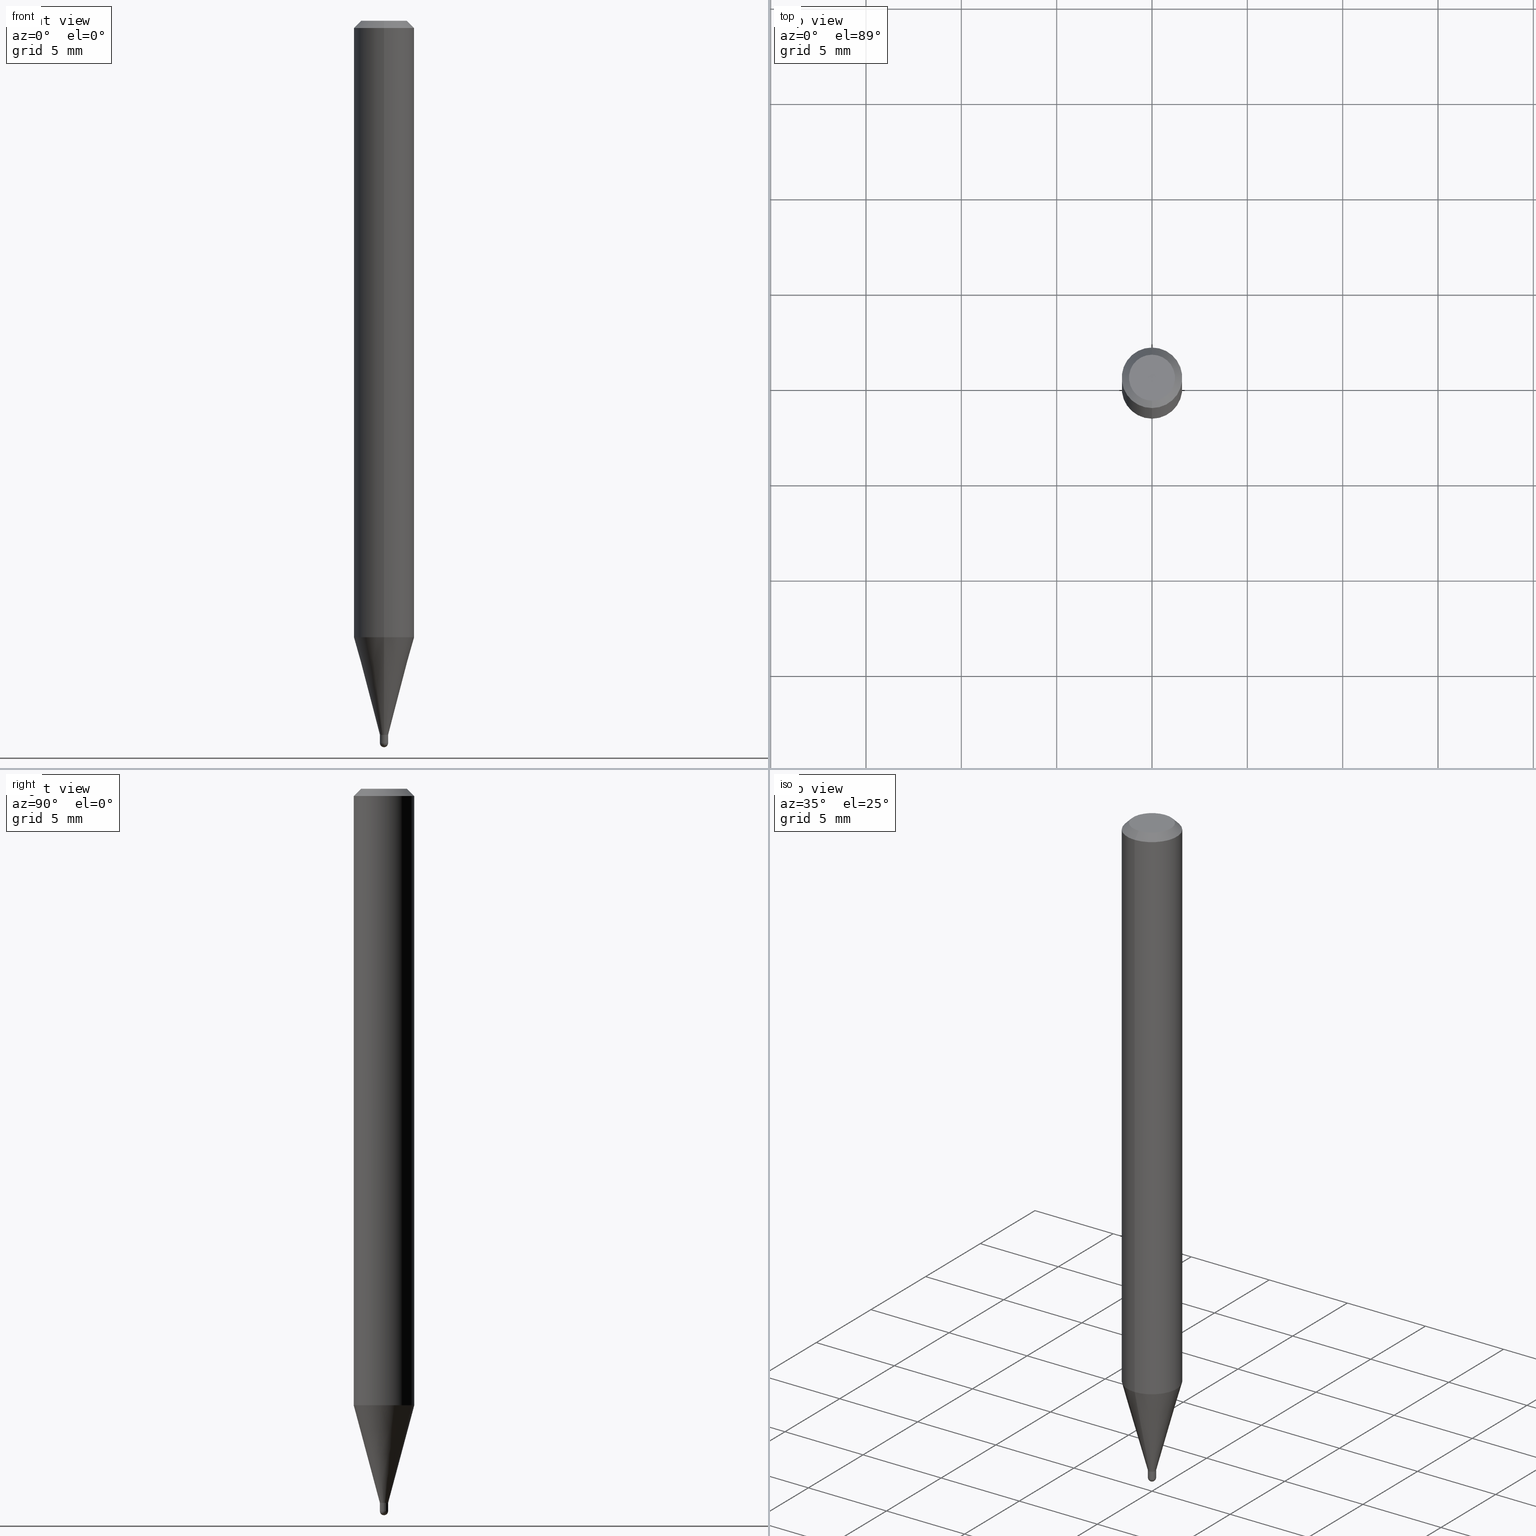
[diagram: canonical four-view strip — front | top / right | iso, engineering-drawing reading convention]
A machine part, canonical four-view strip (front | top / right | iso — engineering-drawing reading convention). The complete STEP part file that produces these views, byte-faithful:
ISO-10303-21;
HEADER;
FILE_DESCRIPTION (( 'STEP AP203' ),
    '1' );
FILE_NAME ('01374.STEP',
    '2024-03-07T20:04:04',
    ( '' ),
    ( '' ),
    'SwSTEP 2.0',
    'SolidWorks 2023',
    '' );
FILE_SCHEMA (( 'CONFIG_CONTROL_DESIGN' ));
ENDSEC;

DATA;
#1 = DIRECTION ( 'NONE',  ( -6.982962677686265922E-15, -1.000000000000000000, 4.370956789862821150E-15 ) ) ;
#2 = AXIS2_PLACEMENT_3D ( 'NONE', #308, #460, #494 ) ;
#3 = AXIS2_PLACEMENT_3D ( 'NONE', #327, #170, #395 ) ;
#4 = DATE_AND_TIME ( #179, #495 ) ;
#5 = CARTESIAN_POINT ( 'NONE',  ( 0.008500000000000002345, -5.935518276033327838E-17, 4.144750259426545879E-31 ) ) ;
#6 = AXIS2_PLACEMENT_3D ( 'NONE', #94, #221, #55 ) ;
#7 = CARTESIAN_POINT ( 'NONE',  ( 0.008500000000000000611, -5.207544416884551827E-15, -1.474500000000000144 ) ) ;
#8 = VERTEX_POINT ( 'NONE', #115 ) ;
#9 = APPROVAL_DATE_TIME ( #443, #193 ) ;
#10 = ORIENTED_EDGE ( 'NONE', *, *, #458, .F. ) ;
#11 = EDGE_CURVE ( 'NONE', #324, #276, #472, .T. ) ;
#12 = ORIENTED_EDGE ( 'NONE', *, *, #120, .F. ) ;
#13 = ORIENTED_EDGE ( 'NONE', *, *, #101, .T. ) ;
#14 = VERTEX_POINT ( 'NONE', #236 ) ;
#15 = AXIS2_PLACEMENT_3D ( 'NONE', #452, #154, #84 ) ;
#16 = CC_DESIGN_SECURITY_CLASSIFICATION ( #141, ( #219 ) ) ;
#17 = SPHERICAL_SURFACE ( 'NONE', #381, 0.008500000000000099490 ) ;
#18 = ADVANCED_FACE ( 'NONE', ( #377 ), #385, .T. ) ;
#19 = ORIENTED_EDGE ( 'NONE', *, *, #163, .T. ) ;
#20 = EDGE_CURVE ( 'NONE', #478, #498, #103, .T. ) ;
#21 = MANIFOLD_SOLID_BREP ( 'Body-Move/Copy2[2]', #138 ) ;
#22 = CARTESIAN_POINT ( 'NONE',  ( -3.773273898774340269E-16, -0.04749999999999999362, 1.569854397394025813E-16 ) ) ;
#23 = DIRECTION ( 'NONE',  ( 2.438088387897960049E-29, -3.491481338843145188E-15, -1.000000000000000000 ) ) ;
#24 = EDGE_CURVE ( 'NONE', #374, #96, #238, .T. ) ;
#25 = AXIS2_PLACEMENT_3D ( 'NONE', #389, #113, #272 ) ;
#26 = ORIENTED_EDGE ( 'NONE', *, *, #285, .T. ) ;
#27 = DIRECTION ( 'NONE',  ( -2.445465897331447067E-29, 3.491485504487190597E-15, 1.000000000000000000 ) ) ;
#28 = ORIENTED_EDGE ( 'NONE', *, *, #458, .T. ) ;
#29 = AXIS2_PLACEMENT_3D ( 'NONE', #245, #394, #36 ) ;
#30 = DIRECTION ( 'NONE',  ( -1.000000000000000000, 6.982962677686265922E-15, -4.876176775795935793E-29 ) ) ;
#31 = DIRECTION ( 'NONE',  ( -2.445468806185136877E-29, 3.491481338843145188E-15, 1.000000000000000000 ) ) ;
#32 = DIRECTION ( 'NONE',  ( -6.982962677686265922E-15, -1.000000000000000000, 0.000000000000000000 ) ) ;
#33 = DIRECTION ( 'NONE',  ( -2.445465897331447067E-29, 3.491485504487190597E-15, 1.000000000000000000 ) ) ;
#34 = AXIS2_PLACEMENT_3D ( 'NONE', #71, #464, #160 ) ;
#35 = VECTOR ( 'NONE', #434, 39.37007874015748143 ) ;
#36 = DIRECTION ( 'NONE',  ( -6.982962677686266711E-15, -1.000000000000000000, 0.000000000000000000 ) ) ;
#37 = CARTESIAN_POINT ( 'NONE',  ( 3.668198845997173123E-31, -5.237228256730788953E-17, -0.01500000000000000812 ) ) ;
#38 = EDGE_CURVE ( 'NONE', #225, #488, #192, .T. ) ;
#39 = CIRCLE ( 'NONE', #15, 0.008500000000000002345 ) ;
#40 = ADVANCED_FACE ( 'NONE', ( #497 ), #90, .T. ) ;
#41 = PERSON_AND_ORGANIZATION_ROLE ( 'creator' ) ;
#42 = CIRCLE ( 'NONE', #289, 0.008499999999999924283 ) ;
#43 = ORIENTED_EDGE ( 'NONE', *, *, #237, .T. ) ;
#44 = ORIENTED_EDGE ( 'NONE', *, *, #237, .F. ) ;
#45 = DIRECTION ( 'NONE',  ( 2.445465897331447067E-29, -3.491485504487190597E-15, -1.000000000000000000 ) ) ;
#46 = ORIENTED_EDGE ( 'NONE', *, *, #254, .F. ) ;
#47 = VECTOR ( 'NONE', #269, 39.37007874015748143 ) ;
#48 = PERSON_AND_ORGANIZATION_ROLE ( 'creator' ) ;
#49 = ORIENTED_EDGE ( 'NONE', *, *, #438, .F. ) ;
#50 = CC_DESIGN_APPROVAL ( #265, ( #219 ) ) ;
#51 = ADVANCED_FACE ( 'NONE', ( #457 ), #119, .F. ) ;
#52 = ORIENTED_EDGE ( 'NONE', *, *, #309, .T. ) ;
#53 = ORIENTED_EDGE ( 'NONE', *, *, #11, .T. ) ;
#54 = EDGE_CURVE ( 'NONE', #291, #488, #473, .T. ) ;
#55 = DIRECTION ( 'NONE',  ( 1.000000000000000000, 0.000000000000000000, 0.000000000000000000 ) ) ;
#56 = LINE ( 'NONE', #345, #35 ) ;
#57 = ORIENTED_EDGE ( 'NONE', *, *, #468, .T. ) ;
#58 = CLOSED_SHELL ( 'NONE', ( #200, #85, #80, #136, #390 ) ) ;
#59 = CARTESIAN_POINT ( 'NONE',  ( 3.605839465615219085E-29, -5.148195376366363453E-15, -1.474500000000000144 ) ) ;
#60 = ORIENTED_EDGE ( 'NONE', *, *, #309, .F. ) ;
#61 = CIRCLE ( 'NONE', #128, 0.008500000000000002345 ) ;
#62 = CC_DESIGN_PERSON_AND_ORGANIZATION_ASSIGNMENT ( #129, #48, ( #219 ) ) ;
#63 =( CONVERSION_BASED_UNIT ( 'INCH', #135 ) LENGTH_UNIT ( ) NAMED_UNIT ( #273 ) );
#64 = AXIS2_PLACEMENT_3D ( 'NONE', #89, #339, #188 ) ;
#65 = DIRECTION ( 'NONE',  ( -2.445465897331447067E-29, 3.491485504487190597E-15, 1.000000000000000000 ) ) ;
#66 = ORIENTED_EDGE ( 'NONE', *, *, #295, .T. ) ;
#67 = DIRECTION ( 'NONE',  ( 1.839019923739648436E-15, 0.2588190451025317307, 0.9659258262890653146 ) ) ;
#68 = EDGE_CURVE ( 'NONE', #276, #324, #296, .T. ) ;
#69 = FACE_OUTER_BOUND ( 'NONE', #334, .T. ) ;
#70 = DIRECTION ( 'NONE',  ( -6.982962677686265922E-15, -1.000000000000000000, 3.491485504487190203E-15 ) ) ;
#71 = CARTESIAN_POINT ( 'NONE',  ( 3.605843754719984351E-29, -5.148189234124218339E-15, -1.474500000000000144 ) ) ;
#72 = DIRECTION ( 'NONE',  ( -2.445465897331447067E-29, 3.491485504487190597E-15, 1.000000000000000000 ) ) ;
#73 = AXIS2_PLACEMENT_3D ( 'NONE', #404, #45, #217 ) ;
#74 = DIRECTION ( 'NONE',  ( -2.445465897331447067E-29, 3.491485504487190992E-15, 1.000000000000000000 ) ) ;
#75 = FACE_OUTER_BOUND ( 'NONE', #370, .T. ) ;
#76 = EDGE_LOOP ( 'NONE', ( #455, #98, #220, #409 ) ) ;
#77 = CARTESIAN_POINT ( 'NONE',  ( 2.522426711948690701E-16, 0.008499999999994777358, -1.474500000000000366 ) ) ;
#78 = DIRECTION ( 'NONE',  ( -2.445465897331447067E-29, 3.491485504487190992E-15, 1.000000000000000000 ) ) ;
#79 = CARTESIAN_POINT ( 'NONE',  ( 0.000000000000000000, 0.000000000000000000, 0.000000000000000000 ) ) ;
#80 = ADVANCED_FACE ( 'NONE', ( #304 ), #422, .F. ) ;
#81 = DIRECTION ( 'NONE',  ( -6.982962677686266711E-15, -1.000000000000000000, 0.000000000000000000 ) ) ;
#82 = AXIS2_PLACEMENT_3D ( 'NONE', #153, #307, #421 ) ;
#83 = CARTESIAN_POINT ( 'NONE',  ( 3.605839465615219646E-29, -5.148195376366364241E-15, -1.474500000000000366 ) ) ;
#84 = DIRECTION ( 'NONE',  ( 1.000000000000000000, -6.982962677686273021E-15, 0.000000000000000000 ) ) ;
#85 = ADVANCED_FACE ( 'NONE', ( #306 ), #456, .T. ) ;
#86 = SECURITY_CLASSIFICATION_LEVEL ( 'unclassified' ) ;
#87 = DIRECTION ( 'NONE',  ( -6.982962677686266711E-15, -1.000000000000000000, 0.000000000000000000 ) ) ;
#88 = DATE_AND_TIME ( #437, #253 ) ;
#89 = CARTESIAN_POINT ( 'NONE',  ( 3.316907271900976096E-16, 0.04749999999999999362, -1.702756223250110305E-16 ) ) ;
#90 = CONICAL_SURFACE ( 'NONE', #414, 0.008000000000000000167, 0.7853981633974739252 ) ;
#91 = CARTESIAN_POINT ( 'NONE',  ( 2.166712552160914640E-46, -3.093498656642664757E-32, -8.860121723738961558E-18 ) ) ;
#92 = VERTEX_POINT ( 'NONE', #190 ) ;
#93 = APPROVAL_STATUS ( 'not_yet_approved' ) ;
#94 = CARTESIAN_POINT ( 'NONE',  ( 0.000000000000000000, 0.000000000000000000, 0.000000000000000000 ) ) ;
#95 = ORIENTED_EDGE ( 'NONE', *, *, #117, .F. ) ;
#96 = VERTEX_POINT ( 'NONE', #241 ) ;
#97 = AXIS2_PLACEMENT_3D ( 'NONE', #212, #215, #174 ) ;
#98 = ORIENTED_EDGE ( 'NONE', *, *, #412, .F. ) ;
#99 = CARTESIAN_POINT ( 'NONE',  ( 6.039613253964533776E-17, 0.008499999999994843278, -1.491500000000000270 ) ) ;
#100 = ORIENTED_EDGE ( 'NONE', *, *, #54, .T. ) ;
#101 = EDGE_CURVE ( 'NONE', #374, #291, #341, .T. ) ;
#102 = CARTESIAN_POINT ( 'NONE',  ( -5.586370142145406992E-17, -0.008000000000005148826, -1.474500000000000144 ) ) ;
#103 = CIRCLE ( 'NONE', #2, 0.008500000000000099490 ) ;
#104 = ADVANCED_BREP_SHAPE_REPRESENTATION ( '01374', ( #362, #21, #6 ), #430 ) ;
#105 = DIRECTION ( 'NONE',  ( -6.982962677686265922E-15, -1.000000000000000000, 4.370956789862821150E-15 ) ) ;
#106 = UNCERTAINTY_MEASURE_WITH_UNIT (LENGTH_MEASURE( 1.000000000000000082E-05 ), #63, 'distance_accuracy_value', 'NONE');
#107 = DIRECTION ( 'NONE',  ( -2.445465897331447067E-29, 3.491485504487190597E-15, 1.000000000000000000 ) ) ;
#108 = VERTEX_POINT ( 'NONE', #420 ) ;
#109 = CC_DESIGN_PERSON_AND_ORGANIZATION_ASSIGNMENT ( #399, #249, ( #141 ) ) ;
#110 = DIRECTION ( 'NONE',  ( -6.982962677686266711E-15, -1.000000000000000000, 3.491485504487190992E-15 ) ) ;
#111 = DIRECTION ( 'NONE',  ( 1.000000000000000000, -6.982962677686265922E-15, 4.876176775795935232E-29 ) ) ;
#112 = FACE_OUTER_BOUND ( 'NONE', #503, .T. ) ;
#113 = DIRECTION ( 'NONE',  ( -2.445465897331447067E-29, 3.491485504487190597E-15, 1.000000000000000000 ) ) ;
#114 = AXIS2_PLACEMENT_3D ( 'NONE', #378, #187, #105 ) ;
#115 = CARTESIAN_POINT ( 'NONE',  ( -5.586370142145406992E-17, -0.008000000000005148826, -1.474500000000000144 ) ) ;
#116 = LOCAL_TIME ( 15, 4, 4.000000000000000000, #369 ) ;
#117 = EDGE_CURVE ( 'NONE', #14, #92, #380, .T. ) ;
#118 = DIRECTION ( 'NONE',  ( -2.445465897331447067E-29, 3.491485504487190597E-15, 1.000000000000000000 ) ) ;
#119 = CYLINDRICAL_SURFACE ( 'NONE', #122, 0.008499999999999924283 ) ;
#120 = EDGE_CURVE ( 'NONE', #498, #131, #39, .T. ) ;
#121 = DIRECTION ( 'NONE',  ( -6.982962677686266711E-15, -1.000000000000000000, 0.000000000000000000 ) ) ;
#122 = AXIS2_PLACEMENT_3D ( 'NONE', #313, #107, #110 ) ;
#123 = EDGE_CURVE ( 'NONE', #407, #144, #56, .T. ) ;
#124 = CARTESIAN_POINT ( 'NONE',  ( 6.039613253964382166E-17, 0.008499999999994751337, -1.474000000000000199 ) ) ;
#125 = AXIS2_PLACEMENT_3D ( 'NONE', #353, #27, #81 ) ;
#126 = FACE_OUTER_BOUND ( 'NONE', #425, .T. ) ;
#127 = EDGE_CURVE ( 'NONE', #8, #488, #211, .T. ) ;
#128 = AXIS2_PLACEMENT_3D ( 'NONE', #177, #493, #333 ) ;
#129 = PERSON_AND_ORGANIZATION ( #511, #476 ) ;
#130 = AXIS2_PLACEMENT_3D ( 'NONE', #365, #512, #471 ) ;
#131 = VERTEX_POINT ( 'NONE', #283 ) ;
#132 = PERSON_AND_ORGANIZATION ( #511, #476 ) ;
#133 = CC_DESIGN_PERSON_AND_ORGANIZATION_ASSIGNMENT ( #294, #166, ( #451 ) ) ;
#134 = PERSON_AND_ORGANIZATION ( #511, #476 ) ;
#135 = LENGTH_MEASURE_WITH_UNIT ( LENGTH_MEASURE( 0.02539999999999999897 ), #180 );
#136 = ADVANCED_FACE ( 'NONE', ( #204 ), #17, .T. ) ;
#137 = ORIENTED_EDGE ( 'NONE', *, *, #145, .F. ) ;
#138 = CLOSED_SHELL ( 'NONE', ( #234, #387, #447, #18, #500, #156, #382, #371, #492, #402, #40, #51 ) ) ;
#139 = VECTOR ( 'NONE', #78, 39.37007874015748143 ) ;
#140 = ORIENTED_EDGE ( 'NONE', *, *, #169, .F. ) ;
#141 = SECURITY_CLASSIFICATION ( '', '', #86 ) ;
#142 = MECHANICAL_CONTEXT ( 'NONE', #350, 'mechanical' ) ;
#143 = EDGE_LOOP ( 'NONE', ( #266, #232, #229, #60 ) ) ;
#144 = VERTEX_POINT ( 'NONE', #223 ) ;
#145 = EDGE_CURVE ( 'NONE', #418, #8, #258, .T. ) ;
#146 =( NAMED_UNIT ( * ) PLANE_ANGLE_UNIT ( ) SI_UNIT ( $, .RADIAN. ) );
#147 = VERTEX_POINT ( 'NONE', #22 ) ;
#148 = AXIS2_PLACEMENT_3D ( 'NONE', #79, #242, #111 ) ;
#149 = EDGE_LOOP ( 'NONE', ( #44, #10, #486, #52 ) ) ;
#150 = AXIS2_PLACEMENT_3D ( 'NONE', #510, #320, #284 ) ;
#151 = DIRECTION ( 'NONE',  ( -6.982962677686265922E-15, -1.000000000000000000, 3.491485504487190203E-15 ) ) ;
#152 = DIRECTION ( 'NONE',  ( -6.982962677686266711E-15, -1.000000000000000000, 0.000000000000000000 ) ) ;
#153 = CARTESIAN_POINT ( 'NONE',  ( 3.605839465615219085E-29, -5.148195376366363453E-15, -1.474500000000000144 ) ) ;
#154 = DIRECTION ( 'NONE',  ( -2.445468806185136597E-29, 3.491481338843145583E-15, 1.000000000000000000 ) ) ;
#155 = EDGE_LOOP ( 'NONE', ( #444, #43, #482, #178 ) ) ;
#156 = ADVANCED_FACE ( 'NONE', ( #75 ), #332, .T. ) ;
#157 = AXIS2_PLACEMENT_3D ( 'NONE', #356, #33, #1 ) ;
#158 = ORIENTED_EDGE ( 'NONE', *, *, #372, .F. ) ;
#159 = FACE_OUTER_BOUND ( 'NONE', #501, .T. ) ;
#160 = DIRECTION ( 'NONE',  ( 1.000000000000000000, -6.982962677686274599E-15, 0.000000000000000000 ) ) ;
#161 = CIRCLE ( 'NONE', #29, 0.008499999999999924283 ) ;
#162 = LINE ( 'NONE', #466, #429 ) ;
#163 = EDGE_CURVE ( 'NONE', #8, #418, #227, .T. ) ;
#164 = CARTESIAN_POINT ( 'NONE',  ( 3.840629472727447874E-16, 0.04749999999999999362, -1.747056831868805136E-16 ) ) ;
#165 = CIRCLE ( 'NONE', #157, 0.06250000000000000000 ) ;
#166 = PERSON_AND_ORGANIZATION_ROLE ( 'design_owner' ) ;
#167 = APPLICATION_PROTOCOL_DEFINITION ( 'international standard', 'config_control_design', 1994, #176 ) ;
#168 = AXIS2_PLACEMENT_3D ( 'NONE', #379, #502, #70 ) ;
#169 = EDGE_CURVE ( 'NONE', #131, #324, #198, .T. ) ;
#170 = DIRECTION ( 'NONE',  ( -2.445465897331447067E-29, 3.491485504487190597E-15, 1.000000000000000000 ) ) ;
#171 = ORIENTED_EDGE ( 'NONE', *, *, #410, .F. ) ;
#172 = CALENDAR_DATE ( 2024, 7, 3 ) ;
#173 = CIRCLE ( 'NONE', #416, 0.008499999999999924283 ) ;
#174 = DIRECTION ( 'NONE',  ( -6.982962677686265922E-15, -1.000000000000000000, 0.000000000000000000 ) ) ;
#175 = ORIENTED_EDGE ( 'NONE', *, *, #20, .T. ) ;
#176 = APPLICATION_CONTEXT ( 'configuration controlled 3d designs of mechanical parts and assemblies' ) ;
#177 = CARTESIAN_POINT ( 'NONE',  ( 3.647416724425131194E-29, -5.207544416884551827E-15, -1.491500000000000270 ) ) ;
#178 = ORIENTED_EDGE ( 'NONE', *, *, #123, .F. ) ;
#179 = CALENDAR_DATE ( 2024, 7, 3 ) ;
#180 =( LENGTH_UNIT ( ) NAMED_UNIT ( * ) SI_UNIT ( $, .METRE. ) );
#181 = ORIENTED_EDGE ( 'NONE', *, *, #424, .F. ) ;
#182 = VECTOR ( 'NONE', #74, 39.37007874015748143 ) ;
#183 = AXIS2_PLACEMENT_3D ( 'NONE', #431, #316, #475 ) ;
#184 =( NAMED_UNIT ( * ) SI_UNIT ( $, .STERADIAN. ) SOLID_ANGLE_UNIT ( ) );
#185 = ORIENTED_EDGE ( 'NONE', *, *, #206, .F. ) ;
#186 = EDGE_LOOP ( 'NONE', ( #331, #448, #328, #485 ) ) ;
#187 = DIRECTION ( 'NONE',  ( -2.445465897331447067E-29, 3.491485504487190597E-15, 1.000000000000000000 ) ) ;
#188 = DIRECTION ( 'NONE',  ( 6.982962677686265922E-15, 1.000000000000000000, -3.491485504487190992E-15 ) ) ;
#189 = ORIENTED_EDGE ( 'NONE', *, *, #462, .T. ) ;
#190 = CARTESIAN_POINT ( 'NONE',  ( -4.364351673553912750E-16, -0.06250000000000005551, -0.01499999999999979128 ) ) ;
#191 = CYLINDRICAL_SURFACE ( 'NONE', #203, 0.008499999999999924283 ) ;
#192 = LINE ( 'NONE', #230, #139 ) ;
#193 = APPROVAL ( #251, 'UNSPECIFIED' ) ;
#194 = CC_DESIGN_APPROVAL ( #193, ( #318 ) ) ;
#195 = FACE_OUTER_BOUND ( 'NONE', #143, .T. ) ;
#196 = LOCAL_TIME ( 15, 4, 4.000000000000000000, #209 ) ;
#197 = DIRECTION ( 'NONE',  ( -2.445465897331447067E-29, 3.491485504487190597E-15, 1.000000000000000000 ) ) ;
#198 = LINE ( 'NONE', #278, #398 ) ;
#199 = DIRECTION ( 'NONE',  ( 1.000000000000000000, -6.982962677686265922E-15, 4.883557194083112340E-29 ) ) ;
#200 = ADVANCED_FACE ( 'NONE', ( #69 ), #490, .T. ) ;
#201 = FACE_OUTER_BOUND ( 'NONE', #340, .T. ) ;
#202 = DIRECTION ( 'NONE',  ( -2.445468806185136597E-29, 3.491481338843145583E-15, 1.000000000000000000 ) ) ;
#203 = AXIS2_PLACEMENT_3D ( 'NONE', #305, #454, #419 ) ;
#204 = FACE_OUTER_BOUND ( 'NONE', #449, .T. ) ;
#205 = CARTESIAN_POINT ( 'NONE',  ( 5.861977570024405033E-17, 0.007999999999994853242, -1.474500000000000144 ) ) ;
#206 = EDGE_CURVE ( 'NONE', #96, #14, #343, .T. ) ;
#207 = DIRECTION ( 'NONE',  ( -6.982962677686265922E-15, -1.000000000000000000, 3.483106191921935554E-15 ) ) ;
#208 = CIRCLE ( 'NONE', #216, 0.04749999999999999362 ) ;
#209 = COORDINATED_UNIVERSAL_TIME_OFFSET ( 5, 0, .BEHIND. ) ;
#210 = APPROVAL_STATUS ( 'not_yet_approved' ) ;
#211 = LINE ( 'NONE', #102, #311 ) ;
#212 = CARTESIAN_POINT ( 'NONE',  ( 3.646689833079329078E-29, -5.208585366663827303E-15, -1.491500000000000270 ) ) ;
#213 = ORIENTED_EDGE ( 'NONE', *, *, #270, .T. ) ;
#214 = APPROVAL_ROLE ( '' ) ;
#215 = DIRECTION ( 'NONE',  ( -1.000000000000000000, 6.982962677686265922E-15, -4.883557194083112340E-29 ) ) ;
#216 = AXIS2_PLACEMENT_3D ( 'NONE', #91, #247, #393 ) ;
#217 = DIRECTION ( 'NONE',  ( 6.982962677686265922E-15, 1.000000000000000000, -3.483106191921935554E-15 ) ) ;
#218 = DATE_TIME_ROLE ( 'classification_date' ) ;
#219 = PRODUCT_DEFINITION_FORMATION_WITH_SPECIFIED_SOURCE ( 'ANY', '', #451, .NOT_KNOWN. ) ;
#220 = ORIENTED_EDGE ( 'NONE', *, *, #38, .T. ) ;
#221 = DIRECTION ( 'NONE',  ( 0.000000000000000000, 0.000000000000000000, 1.000000000000000000 ) ) ;
#222 = ORIENTED_EDGE ( 'NONE', *, *, #468, .F. ) ;
#223 = CARTESIAN_POINT ( 'NONE',  ( 4.440892098500938748E-16, 0.06249999999999995143, -0.01500000000000022669 ) ) ;
#224 = DESIGN_CONTEXT ( 'detailed design', #176, 'design' ) ;
#225 = VERTEX_POINT ( 'NONE', #417 ) ;
#226 = ORIENTED_EDGE ( 'NONE', *, *, #120, .T. ) ;
#227 = CIRCLE ( 'NONE', #406, 0.008000000000000000167 ) ;
#228 = VECTOR ( 'NONE', #322, 39.37007874015748143 ) ;
#229 = ORIENTED_EDGE ( 'NONE', *, *, #117, .T. ) ;
#230 = CARTESIAN_POINT ( 'NONE',  ( -5.935518276033273604E-17, -0.008499999999999924283, 2.967762678814085965E-17 ) ) ;
#231 = FACE_OUTER_BOUND ( 'NONE', #411, .T. ) ;
#232 = ORIENTED_EDGE ( 'NONE', *, *, #206, .T. ) ;
#233 = CARTESIAN_POINT ( 'NONE',  ( 3.605839465615219085E-29, -5.148195376366363453E-15, -1.474500000000000144 ) ) ;
#234 = ADVANCED_FACE ( 'NONE', ( #231 ), #191, .F. ) ;
#235 = DIRECTION ( 'NONE',  ( -6.982962677686266711E-15, -1.000000000000000000, 0.000000000000000000 ) ) ;
#236 = CARTESIAN_POINT ( 'NONE',  ( -4.364351673553606080E-16, -0.06250000000000446865, -1.272969256391286663 ) ) ;
#237 = EDGE_CURVE ( 'NONE', #147, #92, #506, .T. ) ;
#238 = LINE ( 'NONE', #277, #364 ) ;
#239 = ORIENTED_EDGE ( 'NONE', *, *, #372, .T. ) ;
#240 = CYLINDRICAL_SURFACE ( 'NONE', #168, 0.06250000000000000000 ) ;
#241 = CARTESIAN_POINT ( 'NONE',  ( 4.440892098500935790E-16, 0.06249999999999555217, -1.272969256391287329 ) ) ;
#242 = DIRECTION ( 'NONE',  ( -2.445468806185136597E-29, 3.491481338843145583E-15, 1.000000000000000000 ) ) ;
#243 = DIRECTION ( 'NONE',  ( -2.445465897331447067E-29, 3.491485504487190597E-15, 1.000000000000000000 ) ) ;
#244 = CONICAL_SURFACE ( 'NONE', #73, 0.06250000000000000000, 0.7853981633974483900 ) ;
#245 = CARTESIAN_POINT ( 'NONE',  ( 3.605839465615219646E-29, -5.148195376366364241E-15, -1.474500000000000366 ) ) ;
#246 = CONICAL_SURFACE ( 'NONE', #150, 0.06250000000000000000, 0.7853981633974483900 ) ;
#247 = DIRECTION ( 'NONE',  ( -2.445465897331447067E-29, 3.491485504487190597E-15, 1.000000000000000000 ) ) ;
#248 = DIRECTION ( 'NONE',  ( -4.851104656540964275E-15, -0.7071067811865500152, -0.7071067811865450192 ) ) ;
#249 = PERSON_AND_ORGANIZATION_ROLE ( 'classification_officer' ) ;
#250 = CARTESIAN_POINT ( 'NONE',  ( 3.667112872259001721E-29, -5.238783432933632180E-15, -1.500000000000000444 ) ) ;
#251 = APPROVAL_STATUS ( 'not_yet_approved' ) ;
#252 = AXIS2_PLACEMENT_3D ( 'NONE', #37, #243, #207 ) ;
#253 = LOCAL_TIME ( 15, 4, 4.000000000000000000, #401 ) ;
#254 = EDGE_CURVE ( 'NONE', #108, #498, #392, .T. ) ;
#255 = ORIENTED_EDGE ( 'NONE', *, *, #163, .F. ) ;
#256 = APPROVAL_ROLE ( '' ) ;
#257 = ORIENTED_EDGE ( 'NONE', *, *, #54, .F. ) ;
#258 = CIRCLE ( 'NONE', #436, 0.008000000000000000167 ) ;
#259 = EDGE_LOOP ( 'NONE', ( #302, #66, #403, #95 ) ) ;
#260 = PRODUCT_RELATED_PRODUCT_CATEGORY ( 'detail', '', ( #451 ) ) ;
#261 = CARTESIAN_POINT ( 'NONE',  ( 3.646689833079329078E-29, -5.208585366663827303E-15, -1.491500000000000270 ) ) ;
#262 = APPLICATION_PROTOCOL_DEFINITION ( 'international standard', 'config_control_design', 1994, #350 ) ;
#263 = ORIENTED_EDGE ( 'NONE', *, *, #459, .F. ) ;
#264 = APPROVAL_PERSON_ORGANIZATION ( #319, #288, #214 ) ;
#265 = APPROVAL ( #93, 'UNSPECIFIED' ) ;
#266 = ORIENTED_EDGE ( 'NONE', *, *, #295, .F. ) ;
#267 = ORIENTED_EDGE ( 'NONE', *, *, #38, .F. ) ;
#268 = DIRECTION ( 'NONE',  ( -2.445465897331447067E-29, 3.491485504487190597E-15, 1.000000000000000000 ) ) ;
#269 = DIRECTION ( 'NONE',  ( -2.445465897331447067E-29, 3.491485504487190992E-15, 1.000000000000000000 ) ) ;
#270 = EDGE_CURVE ( 'NONE', #225, #14, #162, .T. ) ;
#271 = CARTESIAN_POINT ( 'NONE',  ( 0.000000000000000000, 0.000000000000000000, 0.000000000000000000 ) ) ;
#272 = DIRECTION ( 'NONE',  ( -6.982962677686266711E-15, -1.000000000000000000, 0.000000000000000000 ) ) ;
#273 = DIMENSIONAL_EXPONENTS ( 1.000000000000000000, 0.000000000000000000, 0.000000000000000000, 0.000000000000000000, 0.000000000000000000, 0.000000000000000000, 0.000000000000000000 ) ;
#274 = CC_DESIGN_PERSON_AND_ORGANIZATION_ASSIGNMENT ( #134, #41, ( #318 ) ) ;
#275 = AXIS2_PLACEMENT_3D ( 'NONE', #376, #199, #32 ) ;
#276 = VERTEX_POINT ( 'NONE', #7 ) ;
#277 = CARTESIAN_POINT ( 'NONE',  ( 6.039613253964404353E-17, 0.008499999999994777358, -1.474500000000000366 ) ) ;
#278 = CARTESIAN_POINT ( 'NONE',  ( -0.008500000000000002345, 6.039613253960853246E-17, -4.181094826716670944E-31 ) ) ;
#279 = CARTESIAN_POINT ( 'NONE',  ( 3.605843754719984351E-29, -5.148189234124218339E-15, -1.474500000000000144 ) ) ;
#280 = VECTOR ( 'NONE', #292, 39.37007874015748143 ) ;
#281 = CC_DESIGN_PERSON_AND_ORGANIZATION_ASSIGNMENT ( #509, #405, ( #219 ) ) ;
#282 = ORIENTED_EDGE ( 'NONE', *, *, #24, .F. ) ;
#283 = CARTESIAN_POINT ( 'NONE',  ( -0.008500000000000002345, -5.117470692964776514E-15, -1.491500000000000270 ) ) ;
#284 = DIRECTION ( 'NONE',  ( 6.982962677686265922E-15, 1.000000000000000000, -3.483106191921935554E-15 ) ) ;
#285 = EDGE_CURVE ( 'NONE', #147, #407, #208, .T. ) ;
#286 = DATE_AND_TIME ( #172, #446 ) ;
#287 = EDGE_CURVE ( 'NONE', #92, #144, #461, .T. ) ;
#288 = APPROVAL ( #210, 'UNSPECIFIED' ) ;
#289 = AXIS2_PLACEMENT_3D ( 'NONE', #428, #118, #121 ) ;
#290 = DIRECTION ( 'NONE',  ( -2.445465897331447067E-29, 3.491485504487190597E-15, 1.000000000000000000 ) ) ;
#291 = VERTEX_POINT ( 'NONE', #124 ) ;
#292 = DIRECTION ( 'NONE',  ( -2.445465897331447067E-29, 3.491485504487190992E-15, 1.000000000000000000 ) ) ;
#293 = ORIENTED_EDGE ( 'NONE', *, *, #462, .F. ) ;
#294 = PERSON_AND_ORGANIZATION ( #511, #476 ) ;
#295 = EDGE_CURVE ( 'NONE', #96, #144, #432, .T. ) ;
#296 = CIRCLE ( 'NONE', #375, 0.008500000000000000611 ) ;
#297 = ORIENTED_EDGE ( 'NONE', *, *, #20, .F. ) ;
#298 = CIRCLE ( 'NONE', #183, 0.008500000000000002345 ) ;
#299 = EDGE_LOOP ( 'NONE', ( #181, #384, #489, #257 ) ) ;
#300 = ORIENTED_EDGE ( 'NONE', *, *, #127, .F. ) ;
#301 = ORIENTED_EDGE ( 'NONE', *, *, #169, .T. ) ;
#302 = ORIENTED_EDGE ( 'NONE', *, *, #368, .T. ) ;
#303 = DIRECTION ( 'NONE',  ( -4.937700262164674260E-15, -0.7071067811865632269, 0.7071067811865319186 ) ) ;
#304 = FACE_OUTER_BOUND ( 'NONE', #361, .T. ) ;
#305 = CARTESIAN_POINT ( 'NONE',  ( 0.000000000000000000, 0.000000000000000000, 0.000000000000000000 ) ) ;
#306 = FACE_OUTER_BOUND ( 'NONE', #442, .T. ) ;
#307 = DIRECTION ( 'NONE',  ( -2.445465897331446507E-29, 3.491485504487190992E-15, 1.000000000000000000 ) ) ;
#308 = CARTESIAN_POINT ( 'NONE',  ( 3.646689833079329078E-29, -5.208585366663827303E-15, -1.491500000000000270 ) ) ;
#309 = EDGE_CURVE ( 'NONE', #144, #92, #507, .T. ) ;
#310 = ORIENTED_EDGE ( 'NONE', *, *, #438, .T. ) ;
#311 = VECTOR ( 'NONE', #303, 39.37007874015748143 ) ;
#312 = VECTOR ( 'NONE', #358, 39.37007874015748143 ) ;
#313 = CARTESIAN_POINT ( 'NONE',  ( 0.000000000000000000, 0.000000000000000000, 0.000000000000000000 ) ) ;
#314 = CARTESIAN_POINT ( 'NONE',  ( -0.008500000000000000611, -5.117470692964776514E-15, -1.474500000000000144 ) ) ;
#315 = CARTESIAN_POINT ( 'NONE',  ( 5.684341886084406946E-17, 0.007999999999994853242, -1.474500000000000144 ) ) ;
#316 = DIRECTION ( 'NONE',  ( -2.445468806185136597E-29, 3.491481338843145583E-15, 1.000000000000000000 ) ) ;
#317 = LINE ( 'NONE', #5, #228 ) ;
#318 = PRODUCT_DEFINITION ( 'UNKNOWN', '', #219, #224 ) ;
#319 = PERSON_AND_ORGANIZATION ( #511, #476 ) ;
#320 = DIRECTION ( 'NONE',  ( 2.445465897331447067E-29, -3.491485504487190597E-15, -1.000000000000000000 ) ) ;
#321 = APPROVAL_DATE_TIME ( #483, #288 ) ;
#322 = DIRECTION ( 'NONE',  ( -2.445468806185136877E-29, 3.491481338843145188E-15, 1.000000000000000000 ) ) ;
#323 = CARTESIAN_POINT ( 'NONE',  ( 4.440892098500625669E-16, 0.06250000000000000000, -2.182178440304493877E-16 ) ) ;
#324 = VERTEX_POINT ( 'NONE', #314 ) ;
#325 = COORDINATED_UNIVERSAL_TIME_OFFSET ( 5, 0, .BEHIND. ) ;
#326 = ORIENTED_EDGE ( 'NONE', *, *, #68, .F. ) ;
#327 = CARTESIAN_POINT ( 'NONE',  ( 3.668198845997173123E-31, -5.237228256730788953E-17, -0.01500000000000000812 ) ) ;
#328 = ORIENTED_EDGE ( 'NONE', *, *, #368, .F. ) ;
#329 = CALENDAR_DATE ( 2024, 7, 3 ) ;
#330 = FACE_OUTER_BOUND ( 'NONE', #186, .T. ) ;
#331 = ORIENTED_EDGE ( 'NONE', *, *, #412, .T. ) ;
#332 = CONICAL_SURFACE ( 'NONE', #445, 0.008499999999999924283, 0.2617993877991572904 ) ;
#333 = DIRECTION ( 'NONE',  ( 1.000000000000000000, -6.982962677686273021E-15, 0.000000000000000000 ) ) ;
#334 = EDGE_LOOP ( 'NONE', ( #226, #301, #326, #263, #487 ) ) ;
#335 = APPROVAL_PERSON_ORGANIZATION ( #396, #265, #256 ) ;
#336 = DIRECTION ( 'NONE',  ( 1.000000000000000000, -6.982962677686265922E-15, 4.883557194083112340E-29 ) ) ;
#337 = ORIENTED_EDGE ( 'NONE', *, *, #68, .T. ) ;
#338 = CARTESIAN_POINT ( 'NONE',  ( 3.605839465615219085E-29, -5.148195376366363453E-15, -1.474500000000000144 ) ) ;
#339 = DIRECTION ( 'NONE',  ( 2.445465897331446507E-29, -3.491485504487190992E-15, -1.000000000000000000 ) ) ;
#340 = EDGE_LOOP ( 'NONE', ( #140, #189, #239, #415, #349 ) ) ;
#341 = LINE ( 'NONE', #491, #47 ) ;
#342 = CARTESIAN_POINT ( 'NONE',  ( 0.000000000000000000, 0.000000000000000000, 0.000000000000000000 ) ) ;
#343 = CIRCLE ( 'NONE', #114, 0.06250000000000000000 ) ;
#344 = AXIS2_PLACEMENT_3D ( 'NONE', #271, #496, #388 ) ;
#345 = CARTESIAN_POINT ( 'NONE',  ( 4.364351673553919652E-16, 0.06249999999999995143, -0.01500000000000022669 ) ) ;
#346 = VERTEX_POINT ( 'NONE', #355 ) ;
#347 = CARTESIAN_POINT ( 'NONE',  ( -4.364351673553916201E-16, -0.06250000000000000000, 2.182178440304493877E-16 ) ) ;
#348 = PRODUCT_DEFINITION_SHAPE ( 'NONE', 'NONE',  #318 ) ;
#349 = ORIENTED_EDGE ( 'NONE', *, *, #11, .F. ) ;
#350 = APPLICATION_CONTEXT ( 'configuration controlled 3d designs of mechanical parts and assemblies' ) ;
#351 = DIRECTION ( 'NONE',  ( 1.000000000000000000, -6.982962677686274599E-15, 0.000000000000000000 ) ) ;
#352 = AXIS2_PLACEMENT_3D ( 'NONE', #499, #23, #30 ) ;
#353 = CARTESIAN_POINT ( 'NONE',  ( 3.605839465615219085E-29, -5.148195376366363453E-15, -1.474500000000000144 ) ) ;
#354 = CARTESIAN_POINT ( 'NONE',  ( 3.647416724425131194E-29, -5.207544416884551827E-15, -1.491500000000000270 ) ) ;
#355 = CARTESIAN_POINT ( 'NONE',  ( -5.935518276029715102E-17, -0.008500000000005258557, -1.491500000000000270 ) ) ;
#356 = CARTESIAN_POINT ( 'NONE',  ( 3.113002904856262917E-29, -4.444553706348016691E-15, -1.272969256391287107 ) ) ;
#357 = APPROVAL_DATE_TIME ( #4, #265 ) ;
#358 = DIRECTION ( 'NONE',  ( 5.024295867788190974E-15, 0.7071067811865681119, 0.7071067811865270336 ) ) ;
#359 = CALENDAR_DATE ( 2024, 7, 3 ) ;
#360 = FACE_OUTER_BOUND ( 'NONE', #155, .T. ) ;
#361 = EDGE_LOOP ( 'NONE', ( #337, #53 ) ) ;
#362 = MANIFOLD_SOLID_BREP ( 'Body-Move/Copy2[1]', #58 ) ;
#363 = DATE_TIME_ROLE ( 'creation_date' ) ;
#364 = VECTOR ( 'NONE', #67, 39.37007874015748143 ) ;
#365 = CARTESIAN_POINT ( 'NONE',  ( 2.166712552160914640E-46, -3.093498656642664757E-32, -8.860121723738961558E-18 ) ) ;
#366 = CARTESIAN_POINT ( 'NONE',  ( -4.287811248607203282E-16, -0.06250000000000005551, -0.01499999999999979128 ) ) ;
#367 = CIRCLE ( 'NONE', #97, 0.008500000000000099490 ) ;
#368 = EDGE_CURVE ( 'NONE', #14, #96, #165, .T. ) ;
#369 = COORDINATED_UNIVERSAL_TIME_OFFSET ( 5, 0, .BEHIND. ) ;
#370 = EDGE_LOOP ( 'NONE', ( #282, #57, #213, #185 ) ) ;
#371 = ADVANCED_FACE ( 'NONE', ( #477 ), #244, .T. ) ;
#372 = EDGE_CURVE ( 'NONE', #346, #108, #61, .T. ) ;
#373 = CARTESIAN_POINT ( 'NONE',  ( 3.605839465615219646E-29, -5.148195376366364241E-15, -1.474500000000000366 ) ) ;
#374 = VERTEX_POINT ( 'NONE', #77 ) ;
#375 = AXIS2_PLACEMENT_3D ( 'NONE', #279, #202, #351 ) ;
#376 = CARTESIAN_POINT ( 'NONE',  ( 3.646689833079329078E-29, -5.208585366663827303E-15, -1.491500000000000270 ) ) ;
#377 = FACE_OUTER_BOUND ( 'NONE', #259, .T. ) ;
#378 = CARTESIAN_POINT ( 'NONE',  ( 3.113002904856262917E-29, -4.444553706348016691E-15, -1.272969256391287107 ) ) ;
#379 = CARTESIAN_POINT ( 'NONE',  ( 0.000000000000000000, 0.000000000000000000, 0.000000000000000000 ) ) ;
#380 = LINE ( 'NONE', #347, #182 ) ;
#381 = AXIS2_PLACEMENT_3D ( 'NONE', #261, #336, #413 ) ;
#382 = ADVANCED_FACE ( 'NONE', ( #195 ), #240, .T. ) ;
#383 = APPROVAL_PERSON_ORGANIZATION ( #132, #193, #470 ) ;
#384 = ORIENTED_EDGE ( 'NONE', *, *, #145, .T. ) ;
#385 = CYLINDRICAL_SURFACE ( 'NONE', #391, 0.06250000000000000000 ) ;
#386 = CARTESIAN_POINT ( 'NONE',  ( 3.605839465615219646E-29, -5.148195376366364241E-15, -1.474500000000000366 ) ) ;
#387 = ADVANCED_FACE ( 'NONE', ( #112 ), #453, .T. ) ;
#388 = DIRECTION ( 'NONE',  ( 1.000000000000000000, -6.982962677686265922E-15, 4.876176775795935232E-29 ) ) ;
#389 = CARTESIAN_POINT ( 'NONE',  ( 3.604616732666554139E-29, -5.146449633614120390E-15, -1.474000000000000199 ) ) ;
#390 = ADVANCED_FACE ( 'NONE', ( #201 ), #465, .T. ) ;
#391 = AXIS2_PLACEMENT_3D ( 'NONE', #342, #65, #151 ) ;
#392 = CIRCLE ( 'NONE', #467, 0.008500000000000002345 ) ;
#393 = DIRECTION ( 'NONE',  ( -6.982962677686266711E-15, -1.000000000000000000, 3.491485504487190992E-15 ) ) ;
#394 = DIRECTION ( 'NONE',  ( -2.445465897331447067E-29, 3.491485504487190597E-15, 1.000000000000000000 ) ) ;
#395 = DIRECTION ( 'NONE',  ( -6.982962677686265922E-15, -1.000000000000000000, 3.483106191921935554E-15 ) ) ;
#396 = PERSON_AND_ORGANIZATION ( #511, #476 ) ;
#397 = CARTESIAN_POINT ( 'NONE',  ( -5.935518276029689217E-17, -0.008500000000005098963, -1.474000000000000199 ) ) ;
#398 = VECTOR ( 'NONE', #31, 39.37007874015748143 ) ;
#399 = PERSON_AND_ORGANIZATION ( #511, #476 ) ;
#400 = CIRCLE ( 'NONE', #130, 0.04749999999999999362 ) ;
#401 = COORDINATED_UNIVERSAL_TIME_OFFSET ( 5, 0, .BEHIND. ) ;
#402 = ADVANCED_FACE ( 'NONE', ( #159 ), #426, .F. ) ;
#403 = ORIENTED_EDGE ( 'NONE', *, *, #287, .F. ) ;
#404 = CARTESIAN_POINT ( 'NONE',  ( 3.668198845997173123E-31, -5.237228256730788953E-17, -0.01500000000000000812 ) ) ;
#405 = PERSON_AND_ORGANIZATION_ROLE ( 'design_supplier' ) ;
#406 = AXIS2_PLACEMENT_3D ( 'NONE', #338, #72, #152 ) ;
#407 = VERTEX_POINT ( 'NONE', #164 ) ;
#408 = DIRECTION ( 'NONE',  ( -2.445465897331447067E-29, 3.491485504487190597E-15, 1.000000000000000000 ) ) ;
#409 = ORIENTED_EDGE ( 'NONE', *, *, #410, .T. ) ;
#410 = EDGE_CURVE ( 'NONE', #488, #291, #42, .T. ) ;
#411 = EDGE_LOOP ( 'NONE', ( #222, #13, #100, #267 ) ) ;
#412 = EDGE_CURVE ( 'NONE', #225, #374, #161, .T. ) ;
#413 = DIRECTION ( 'NONE',  ( -6.982962677686265922E-15, -1.000000000000000000, 0.000000000000000000 ) ) ;
#414 = AXIS2_PLACEMENT_3D ( 'NONE', #233, #197, #423 ) ;
#415 = ORIENTED_EDGE ( 'NONE', *, *, #459, .T. ) ;
#416 = AXIS2_PLACEMENT_3D ( 'NONE', #83, #469, #87 ) ;
#417 = CARTESIAN_POINT ( 'NONE',  ( -5.935518276029667030E-17, -0.008500000000005072942, -1.474500000000000366 ) ) ;
#418 = VERTEX_POINT ( 'NONE', #205 ) ;
#419 = DIRECTION ( 'NONE',  ( -6.982962677686266711E-15, -1.000000000000000000, 3.491485504487190992E-15 ) ) ;
#420 = CARTESIAN_POINT ( 'NONE',  ( 0.008500000000000002345, -5.237222008264718177E-15, -1.491500000000000270 ) ) ;
#421 = DIRECTION ( 'NONE',  ( -6.982962677686265922E-15, -1.000000000000000000, 3.491485504487190992E-15 ) ) ;
#422 = PLANE ( 'NONE',  #352 ) ;
#423 = DIRECTION ( 'NONE',  ( -6.982962677686266711E-15, -1.000000000000000000, 0.000000000000000000 ) ) ;
#424 = EDGE_CURVE ( 'NONE', #418, #291, #505, .T. ) ;
#425 = EDGE_LOOP ( 'NONE', ( #28, #26 ) ) ;
#426 = PLANE ( 'NONE',  #82 ) ;
#427 = DIRECTION ( 'NONE',  ( -2.445468806185136597E-29, 3.491481338843145583E-15, 1.000000000000000000 ) ) ;
#428 = CARTESIAN_POINT ( 'NONE',  ( 3.604616732666554139E-29, -5.146449633614120390E-15, -1.474000000000000199 ) ) ;
#429 = VECTOR ( 'NONE', #441, 39.37007874015748854 ) ;
#430 =( GEOMETRIC_REPRESENTATION_CONTEXT ( 3 ) GLOBAL_UNCERTAINTY_ASSIGNED_CONTEXT ( ( #106 ) ) GLOBAL_UNIT_ASSIGNED_CONTEXT ( ( #63, #146, #184 ) ) REPRESENTATION_CONTEXT ( 'NONE', 'WORKASPACE' ) );
#431 = CARTESIAN_POINT ( 'NONE',  ( 3.647416724425131194E-29, -5.207544416884551827E-15, -1.491500000000000270 ) ) ;
#432 = LINE ( 'NONE', #323, #280 ) ;
#433 = COORDINATED_UNIVERSAL_TIME_OFFSET ( 5, 0, .BEHIND. ) ;
#434 = DIRECTION ( 'NONE',  ( 4.937700262164548042E-15, 0.7071067811865451302, -0.7071067811865499042 ) ) ;
#435 = PLANE ( 'NONE',  #64 ) ;
#436 = AXIS2_PLACEMENT_3D ( 'NONE', #59, #290, #439 ) ;
#437 = CALENDAR_DATE ( 2024, 7, 3 ) ;
#438 = EDGE_CURVE ( 'NONE', #478, #346, #367, .T. ) ;
#439 = DIRECTION ( 'NONE',  ( -6.982962677686266711E-15, -1.000000000000000000, 0.000000000000000000 ) ) ;
#440 = CC_DESIGN_DATE_AND_TIME_ASSIGNMENT ( #286, #363, ( #318 ) ) ;
#441 = DIRECTION ( 'NONE',  ( -1.807323732225377471E-15, -0.2588190451025249583, 0.9659258262890670910 ) ) ;
#442 = EDGE_LOOP ( 'NONE', ( #49, #175, #46, #158 ) ) ;
#443 = DATE_AND_TIME ( #359, #116 ) ;
#444 = ORIENTED_EDGE ( 'NONE', *, *, #285, .F. ) ;
#445 = AXIS2_PLACEMENT_3D ( 'NONE', #386, #268, #235 ) ;
#446 = LOCAL_TIME ( 15, 4, 4.000000000000000000, #325 ) ;
#447 = ADVANCED_FACE ( 'NONE', ( #360 ), #246, .T. ) ;
#448 = ORIENTED_EDGE ( 'NONE', *, *, #24, .T. ) ;
#449 = EDGE_LOOP ( 'NONE', ( #297, #310, #293, #12 ) ) ;
#450 = VECTOR ( 'NONE', #248, 39.37007874015748143 ) ;
#451 = PRODUCT ( '01374', '01374', '', ( #142 ) ) ;
#452 = CARTESIAN_POINT ( 'NONE',  ( 3.647416724425131194E-29, -5.207544416884551827E-15, -1.491500000000000270 ) ) ;
#453 = CONICAL_SURFACE ( 'NONE', #125, 0.008000000000000000167, 0.7853981633974739252 ) ;
#454 = DIRECTION ( 'NONE',  ( -2.445465897331447067E-29, 3.491485504487190597E-15, 1.000000000000000000 ) ) ;
#455 = ORIENTED_EDGE ( 'NONE', *, *, #101, .F. ) ;
#456 = SPHERICAL_SURFACE ( 'NONE', #275, 0.008500000000000099490 ) ;
#457 = FACE_OUTER_BOUND ( 'NONE', #76, .T. ) ;
#458 = EDGE_CURVE ( 'NONE', #407, #147, #400, .T. ) ;
#459 = EDGE_CURVE ( 'NONE', #108, #276, #317, .T. ) ;
#460 = DIRECTION ( 'NONE',  ( 1.000000000000000000, -7.105427357601001070E-15, 4.926315508542082329E-29 ) ) ;
#461 = CIRCLE ( 'NONE', #3, 0.06250000000000000000 ) ;
#462 = EDGE_CURVE ( 'NONE', #131, #346, #298, .T. ) ;
#463 = CC_DESIGN_APPROVAL ( #288, ( #141 ) ) ;
#464 = DIRECTION ( 'NONE',  ( -2.445468806185136597E-29, 3.491481338843145583E-15, 1.000000000000000000 ) ) ;
#465 = CYLINDRICAL_SURFACE ( 'NONE', #344, 0.008500000000000002345 ) ;
#466 = CARTESIAN_POINT ( 'NONE',  ( -5.935518276029667030E-17, -0.008500000000005072942, -1.474500000000000366 ) ) ;
#467 = AXIS2_PLACEMENT_3D ( 'NONE', #354, #427, #481 ) ;
#468 = EDGE_CURVE ( 'NONE', #374, #225, #173, .T. ) ;
#469 = DIRECTION ( 'NONE',  ( -2.445465897331447067E-29, 3.491485504487190597E-15, 1.000000000000000000 ) ) ;
#470 = APPROVAL_ROLE ( '' ) ;
#471 = DIRECTION ( 'NONE',  ( -6.982962677686266711E-15, -1.000000000000000000, 3.491485504487190992E-15 ) ) ;
#472 = CIRCLE ( 'NONE', #34, 0.008500000000000000611 ) ;
#473 = CIRCLE ( 'NONE', #25, 0.008499999999999924283 ) ;
#474 = SHAPE_DEFINITION_REPRESENTATION ( #348, #104 ) ;
#475 = DIRECTION ( 'NONE',  ( 1.000000000000000000, -6.982962677686273021E-15, 0.000000000000000000 ) ) ;
#476 = ORGANIZATION ( 'UNSPECIFIED', 'UNSPECIFIED', '' ) ;
#477 = FACE_OUTER_BOUND ( 'NONE', #149, .T. ) ;
#478 = VERTEX_POINT ( 'NONE', #250 ) ;
#479 = DIRECTION ( 'NONE',  ( -6.982962677686266711E-15, -1.000000000000000000, 0.000000000000000000 ) ) ;
#480 = ORIENTED_EDGE ( 'NONE', *, *, #424, .T. ) ;
#481 = DIRECTION ( 'NONE',  ( 1.000000000000000000, -6.982962677686273021E-15, 0.000000000000000000 ) ) ;
#482 = ORIENTED_EDGE ( 'NONE', *, *, #287, .T. ) ;
#483 = DATE_AND_TIME ( #329, #196 ) ;
#484 = CC_DESIGN_DATE_AND_TIME_ASSIGNMENT ( #88, #218, ( #141 ) ) ;
#485 = ORIENTED_EDGE ( 'NONE', *, *, #270, .F. ) ;
#486 = ORIENTED_EDGE ( 'NONE', *, *, #123, .T. ) ;
#487 = ORIENTED_EDGE ( 'NONE', *, *, #254, .T. ) ;
#488 = VERTEX_POINT ( 'NONE', #397 ) ;
#489 = ORIENTED_EDGE ( 'NONE', *, *, #127, .T. ) ;
#490 = CYLINDRICAL_SURFACE ( 'NONE', #148, 0.008500000000000002345 ) ;
#491 = CARTESIAN_POINT ( 'NONE',  ( 6.039613253960797780E-17, 0.008499999999999924283, -2.967762678814085965E-17 ) ) ;
#492 = ADVANCED_FACE ( 'NONE', ( #126 ), #435, .F. ) ;
#493 = DIRECTION ( 'NONE',  ( -2.445468806185136597E-29, 3.491481338843145583E-15, 1.000000000000000000 ) ) ;
#494 = DIRECTION ( 'NONE',  ( 7.105427357601001859E-15, 1.000000000000000000, 0.000000000000000000 ) ) ;
#495 = LOCAL_TIME ( 15, 4, 4.000000000000000000, #433 ) ;
#496 = DIRECTION ( 'NONE',  ( -2.445468806185136597E-29, 3.491481338843145583E-15, 1.000000000000000000 ) ) ;
#497 = FACE_OUTER_BOUND ( 'NONE', #299, .T. ) ;
#498 = VERTEX_POINT ( 'NONE', #99 ) ;
#499 = CARTESIAN_POINT ( 'NONE',  ( 5.935518276036933179E-17, 0.008499999999994853686, -1.474500000000000144 ) ) ;
#500 = ADVANCED_FACE ( 'NONE', ( #330 ), #508, .T. ) ;
#501 = EDGE_LOOP ( 'NONE', ( #255, #137 ) ) ;
#502 = DIRECTION ( 'NONE',  ( -2.445465897331447067E-29, 3.491485504487190597E-15, 1.000000000000000000 ) ) ;
#503 = EDGE_LOOP ( 'NONE', ( #19, #480, #171, #300 ) ) ;
#504 = AXIS2_PLACEMENT_3D ( 'NONE', #373, #408, #479 ) ;
#505 = LINE ( 'NONE', #315, #312 ) ;
#506 = LINE ( 'NONE', #366, #450 ) ;
#507 = CIRCLE ( 'NONE', #252, 0.06250000000000000000 ) ;
#508 = CONICAL_SURFACE ( 'NONE', #504, 0.008499999999999924283, 0.2617993877991572904 ) ;
#509 = PERSON_AND_ORGANIZATION ( #511, #476 ) ;
#510 = CARTESIAN_POINT ( 'NONE',  ( 3.668198845997173123E-31, -5.237228256730788953E-17, -0.01500000000000000812 ) ) ;
#511 = PERSON ( 'UNSPECIFIED', 'UNSPECIFIED', 'UNSPECIFIED', ('UNSPECIFIED'), ('UNSPECIFIED'), ('UNSPECIFIED') ) ;
#512 = DIRECTION ( 'NONE',  ( -2.445465897331447067E-29, 3.491485504487190597E-15, 1.000000000000000000 ) ) ;
ENDSEC;
END-ISO-10303-21;
